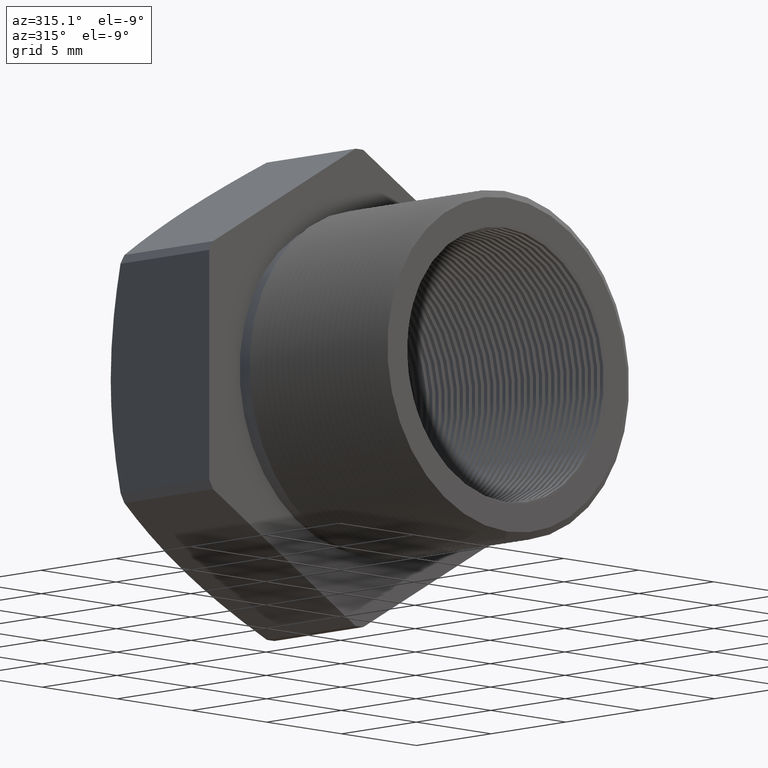
[diagram: clean part render]
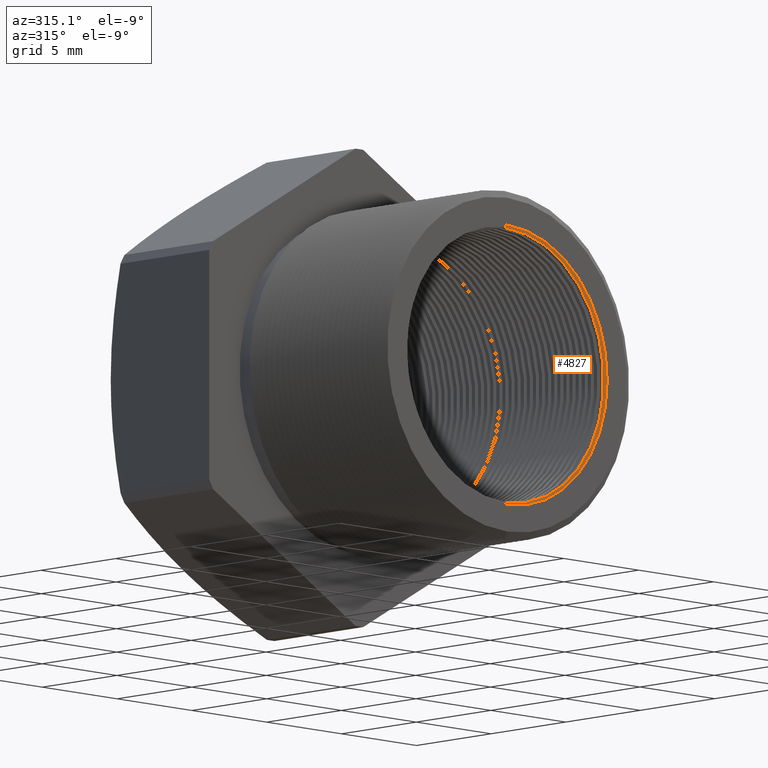
[diagram: same view with one face highlighted and labeled with its STEP entity id]
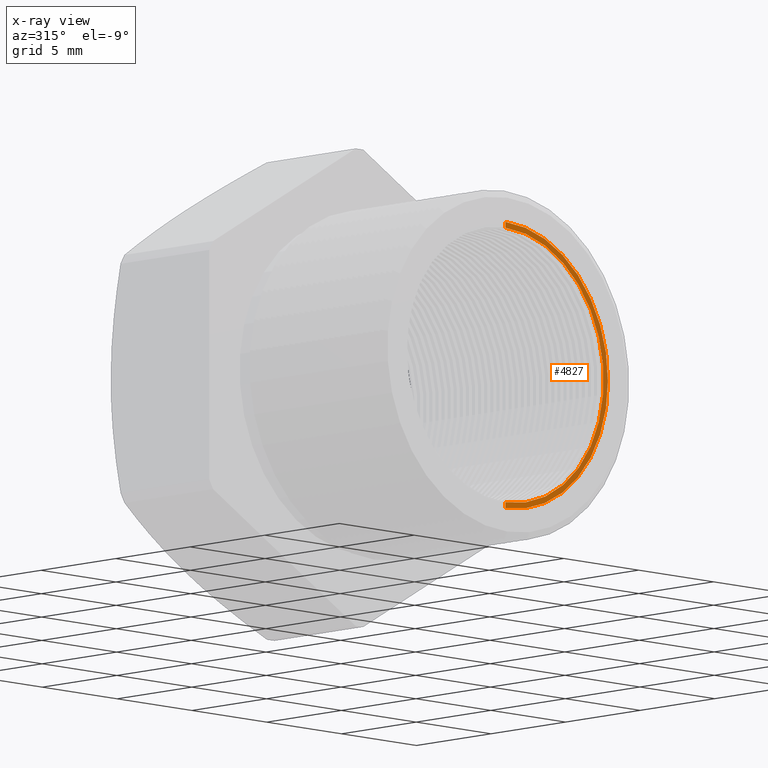
[diagram: x-ray of the same camera — body ghosted, the highlighted face saturated]
A machine part, auxiliary view. The second image highlights one B-rep face of the part: STEP entity #4827.
The next image is the same camera in x-ray: the body ghosted, the highlighted face saturated — about 0% of this face is hidden behind the body in this view.
In plain terms, the highlighted conical surface has half-angle 88.312 deg.
Its self-contained STEP definition (entity closure, byte-faithful):
#827 = VERTEX_POINT ( 'NONE', #3679 ) ;
#846 = VERTEX_POINT ( 'NONE', #3765 ) ;
#900 = VERTEX_POINT ( 'NONE', #3846 ) ;
#906 = VERTEX_POINT ( 'NONE', #3839 ) ;
#908 = EDGE_CURVE ( 'NONE', #906, #827, #3832, .T. ) ;
#923 = EDGE_CURVE ( 'NONE', #900, #846, #3863, .T. ) ;
#3053 = ORIENTED_EDGE ( 'NONE', *, *, #923, .T. ) ;
#3085 = ORIENTED_EDGE ( 'NONE', *, *, #3143, .F. ) ;
#3092 = ORIENTED_EDGE ( 'NONE', *, *, #8916, .T. ) ;
#3143 = EDGE_CURVE ( 'NONE', #827, #846, #6324, .T. ) ;
#3679 = CARTESIAN_POINT ( 'NONE',  ( 3.305482958008340700E-017, -0.2379000000000003600, 0.2699131668257122600 ) ) ;
#3765 = CARTESIAN_POINT ( 'NONE',  ( 0.0000000000000000000, -0.2379000000000003600, -0.2699131668257122600 ) ) ;
#3829 = DIRECTION ( 'NONE',  ( 1.224115347344792500E-016, -0.02945739864719126200, 0.9995660366703845700 ) ) ;
#3830 = VECTOR ( 'NONE', #3829, 39.37007874015747400 ) ;
#3831 = CARTESIAN_POINT ( 'NONE',  ( 2.931775621842221100E-017, -0.2370007019066708600, 0.2393976470508425700 ) ) ;
#3832 = LINE ( 'NONE', #3831, #3830 ) ;
#3839 = CARTESIAN_POINT ( 'NONE',  ( 3.171688816986526800E-017, -0.2375780346429539900, 0.2589880461203001900 ) ) ;
#3846 = CARTESIAN_POINT ( 'NONE',  ( 0.0000000000000000000, -0.2375780346429539900, -0.2589880461203001900 ) ) ;
#3860 = DIRECTION ( 'NONE',  ( 0.0000000000000000000, -0.02945739864719126200, -0.9995660366703845700 ) ) ;
#3861 = VECTOR ( 'NONE', #3860, 39.37007874015747400 ) ;
#3862 = CARTESIAN_POINT ( 'NONE',  ( 0.0000000000000000000, -0.2370007019066708600, -0.2393976470508425700 ) ) ;
#3863 = LINE ( 'NONE', #3862, #3861 ) ;
#4824 = ORIENTED_EDGE ( 'NONE', *, *, #908, .F. ) ;
#4827 = ADVANCED_FACE ( 'NONE', ( #6353 ), #6348, .F. ) ;
#4829 = EDGE_LOOP ( 'NONE', ( #4824, #3092, #3053, #3085 ) ) ;
#6320 = DIRECTION ( 'NONE',  ( 0.0000000000000000000, 0.0000000000000000000, 1.000000000000000000 ) ) ;
#6321 = DIRECTION ( 'NONE',  ( -0.0000000000000000000, 1.000000000000000000, -0.0000000000000000000 ) ) ;
#6322 = CARTESIAN_POINT ( 'NONE',  ( 0.0000000000000000000, -0.2379000000000003600, 0.0000000000000000000 ) ) ;
#6323 = AXIS2_PLACEMENT_3D ( 'NONE', #6322, #6321, #6320 ) ;
#6324 = CIRCLE ( 'NONE', #6323, 0.2699131668257122000 ) ;
#6344 = DIRECTION ( 'NONE',  ( 0.0000000000000000000, 0.0000000000000000000, -1.000000000000000000 ) ) ;
#6345 = DIRECTION ( 'NONE',  ( 0.0000000000000000000, -1.000000000000000000, 0.0000000000000000000 ) ) ;
#6346 = CARTESIAN_POINT ( 'NONE',  ( 0.0000000000000000000, -0.2370007019066708600, 0.0000000000000000000 ) ) ;
#6347 = AXIS2_PLACEMENT_3D ( 'NONE', #6346, #6345, #6344 ) ;
#6348 = CONICAL_SURFACE ( 'NONE', #6347, 0.2393976470508425700, 1.541334666264296200 ) ;
#6353 = FACE_OUTER_BOUND ( 'NONE', #4829, .T. ) ;
#7581 = DIRECTION ( 'NONE',  ( 0.0000000000000000000, 0.0000000000000000000, -1.000000000000000000 ) ) ;
#7582 = DIRECTION ( 'NONE',  ( -0.0000000000000000000, 1.000000000000000000, -0.0000000000000000000 ) ) ;
#7583 = CARTESIAN_POINT ( 'NONE',  ( 0.0000000000000000000, -0.2375780346429539900, 0.0000000000000000000 ) ) ;
#7584 = AXIS2_PLACEMENT_3D ( 'NONE', #7583, #7582, #7581 ) ;
#7585 = CIRCLE ( 'NONE', #7584, 0.2589880461203001900 ) ;
#8916 = EDGE_CURVE ( 'NONE', #906, #900, #7585, .T. ) ;